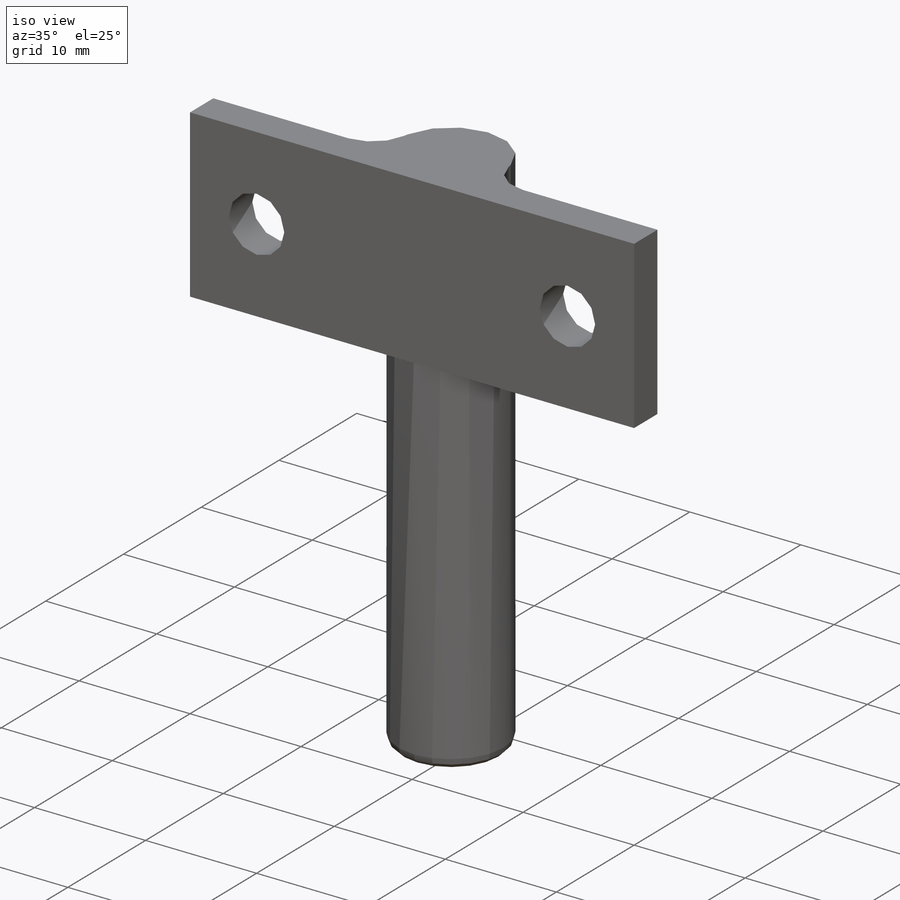
[diagram: iso view]
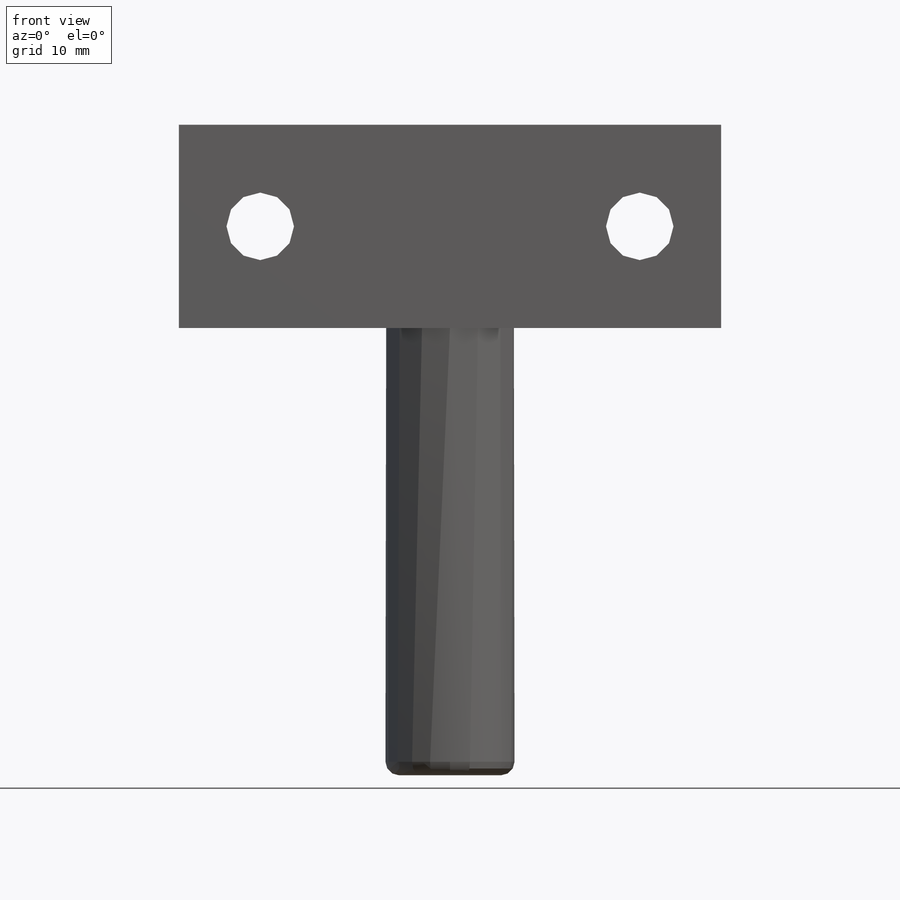
[diagram: front view]
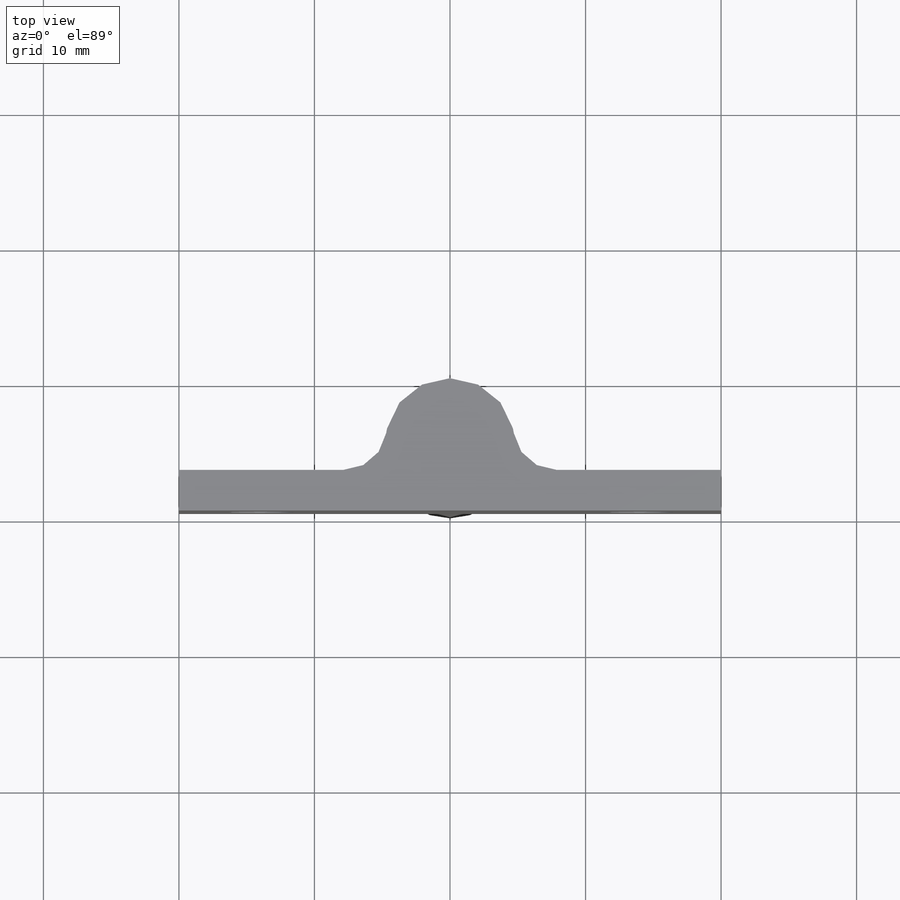
[diagram: top view]
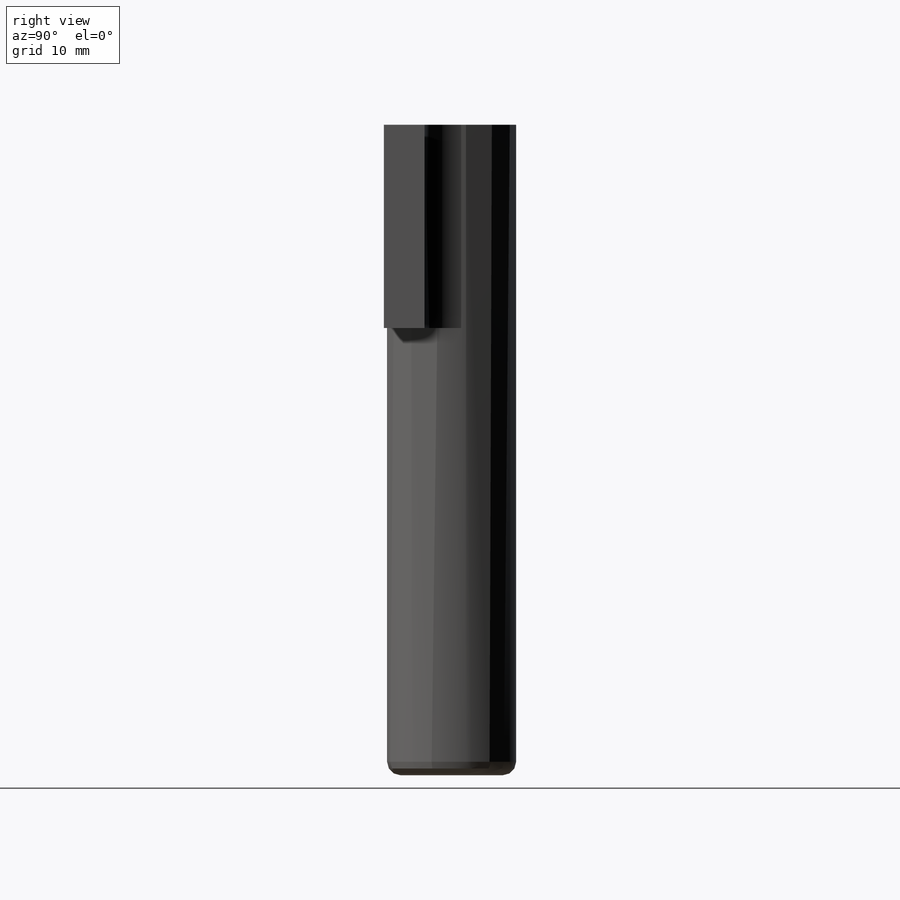
[diagram: right view]
SOLIDWORKS PART (.sldprt)
format: sldprt  version: not decoded by parser v0  size: 186,880 bytes
history: native  units: mm
features: sketch x4, extrude x2, fillet x2, material x1, hole x1 (+11 scaffold rows collapsed)
feature tree (21):
  scaffold x11  (default folders/planes/origin — collapsed)
  material  "6061-T6 (SS)"
  sketch  "Sketch1"  dims[D3=9.525mm D1=40.0mm D2=3.0mm D4=5.0mm]
  extrude  "Boss-Extrude1"  Depth=15mm
  fillet  "Fillet1"  Radius=3.175mm
  sketch  "Sketch2"
  extrude  "Boss-Extrude2"  Depth=33mm
  fillet  "Fillet2"  Radius=1mm
  hole  "#10 Clearance Hole1"  Diameter=4.9784mm Depth=3mm
  sketch  "Sketch4"  dims[D1=28.0mm]
  sketch  "Sketch3"  dims[hole-wizard template sketch: 60 standard entries collapsed; hole parameters kept: c18.Thru Hole Depth=3.0mm]
decode coverage: 8 of 9 modeling features carry decoded parameters
note: ~ marks probable driven/reference dimensions
note: suppression state not decoded; provenance and decode notes live in map.json
